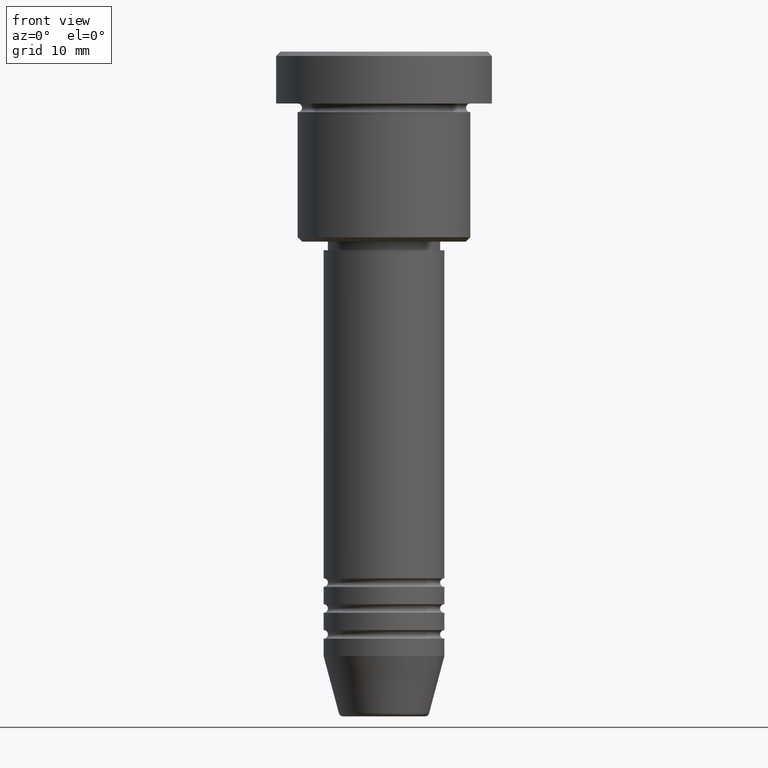
[diagram: clean part render]
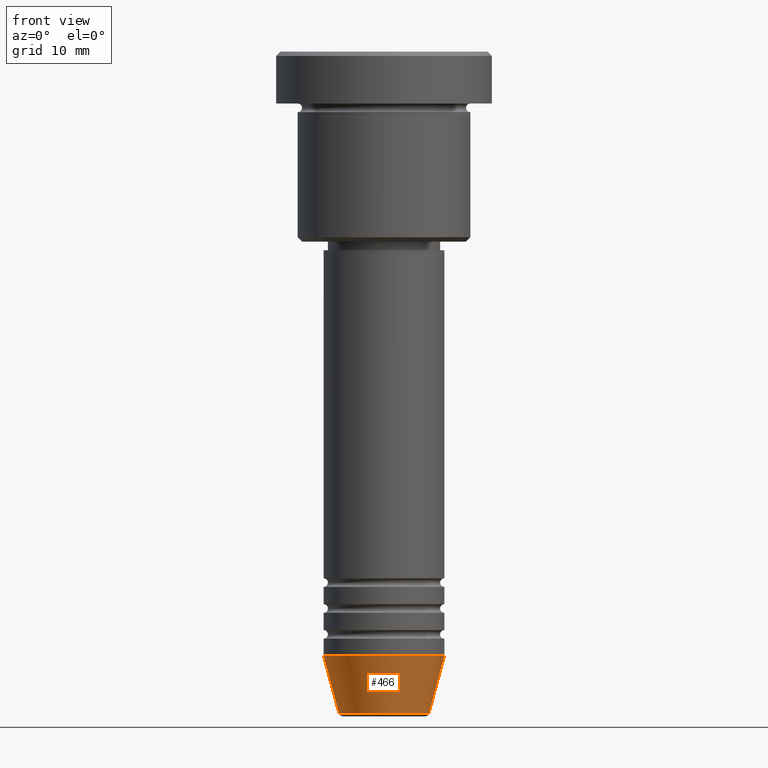
[diagram: same view with one face highlighted and labeled with its STEP entity id]
A machine part, front view. The second image highlights one B-rep face of the part: STEP entity #466.
In plain terms, the highlighted conical surface has half-angle 15 deg.
Its self-contained STEP definition (entity closure, byte-faithful):
#19 = DIRECTION ( 'NONE',  ( -0.000000000000000000, -0.000000000000000000, 1.000000000000000000 ) ) ;
#22 = ORIENTED_EDGE ( 'NONE', *, *, #169, .F. ) ;
#125 = CARTESIAN_POINT ( 'NONE',  ( 7.000000000000000000, 0.000000000000000000, -70.00000000000000000 ) ) ;
#154 = CARTESIAN_POINT ( 'NONE',  ( 7.000000000000000000, 0.000000000000000000, -70.00000000000000000 ) ) ;
#159 = EDGE_CURVE ( 'NONE', #950, #205, #1141, .T. ) ;
#169 = EDGE_CURVE ( 'NONE', #1098, #792, #701, .T. ) ;
#185 = CIRCLE ( 'NONE', #1003, 5.223655072137187716 ) ;
#187 = DIRECTION ( 'NONE',  ( 1.000000000000000000, 0.000000000000000000, 0.000000000000000000 ) ) ;
#205 = VERTEX_POINT ( 'NONE', #154 ) ;
#249 = CARTESIAN_POINT ( 'NONE',  ( -5.223655072137187716, 7.484830028987059188E-16, -76.62940952255127058 ) ) ;
#254 = EDGE_CURVE ( 'NONE', #792, #205, #797, .T. ) ;
#257 = VECTOR ( 'NONE', #1056, 1000.000000000000000 ) ;
#276 = AXIS2_PLACEMENT_3D ( 'NONE', #641, #19, #187 ) ;
#313 = EDGE_LOOP ( 'NONE', ( #22, #1121, #778, #941 ) ) ;
#315 = CONICAL_SURFACE ( 'NONE', #468, 7.000000000000000000, 0.2617993877991501295 ) ;
#398 = FACE_OUTER_BOUND ( 'NONE', #313, .T. ) ;
#466 = ADVANCED_FACE ( 'NONE', ( #398 ), #315, .T. ) ;
#468 = AXIS2_PLACEMENT_3D ( 'NONE', #774, #483, #1020 ) ;
#483 = DIRECTION ( 'NONE',  ( -0.000000000000000000, -0.000000000000000000, 1.000000000000000000 ) ) ;
#538 = CARTESIAN_POINT ( 'NONE',  ( -7.000000000000000000, 8.572527594031473190E-16, -70.00000000000000000 ) ) ;
#614 = CARTESIAN_POINT ( 'NONE',  ( 0.000000000000000000, 0.000000000000000000, -76.62940952255127058 ) ) ;
#641 = CARTESIAN_POINT ( 'NONE',  ( 0.000000000000000000, 0.000000000000000000, -70.00000000000000000 ) ) ;
#701 = LINE ( 'NONE', #1040, #1046 ) ;
#702 = DIRECTION ( 'NONE',  ( -0.000000000000000000, -0.000000000000000000, 1.000000000000000000 ) ) ;
#771 = CARTESIAN_POINT ( 'NONE',  ( 5.223655072137187716, 0.000000000000000000, -76.62940952255127058 ) ) ;
#774 = CARTESIAN_POINT ( 'NONE',  ( 0.000000000000000000, 0.000000000000000000, -70.00000000000000000 ) ) ;
#778 = ORIENTED_EDGE ( 'NONE', *, *, #159, .T. ) ;
#792 = VERTEX_POINT ( 'NONE', #538 ) ;
#797 = CIRCLE ( 'NONE', #276, 7.000000000000000000 ) ;
#941 = ORIENTED_EDGE ( 'NONE', *, *, #254, .F. ) ;
#950 = VERTEX_POINT ( 'NONE', #771 ) ;
#974 = DIRECTION ( 'NONE',  ( 1.000000000000000000, 0.000000000000000000, 0.000000000000000000 ) ) ;
#1003 = AXIS2_PLACEMENT_3D ( 'NONE', #614, #702, #974 ) ;
#1020 = DIRECTION ( 'NONE',  ( 1.000000000000000000, 0.000000000000000000, 0.000000000000000000 ) ) ;
#1040 = CARTESIAN_POINT ( 'NONE',  ( -7.000000000000000000, 8.572527594031473190E-16, -70.00000000000000000 ) ) ;
#1046 = VECTOR ( 'NONE', #1153, 1000.000000000000000 ) ;
#1056 = DIRECTION ( 'NONE',  ( 0.2588190451025214056, 0.000000000000000000, 0.9659258262890680902 ) ) ;
#1086 = EDGE_CURVE ( 'NONE', #1098, #950, #185, .T. ) ;
#1098 = VERTEX_POINT ( 'NONE', #249 ) ;
#1121 = ORIENTED_EDGE ( 'NONE', *, *, #1086, .T. ) ;
#1141 = LINE ( 'NONE', #125, #257 ) ;
#1153 = DIRECTION ( 'NONE',  ( -0.2588190451025214056, 3.169619151431772953E-17, 0.9659258262890680902 ) ) ;